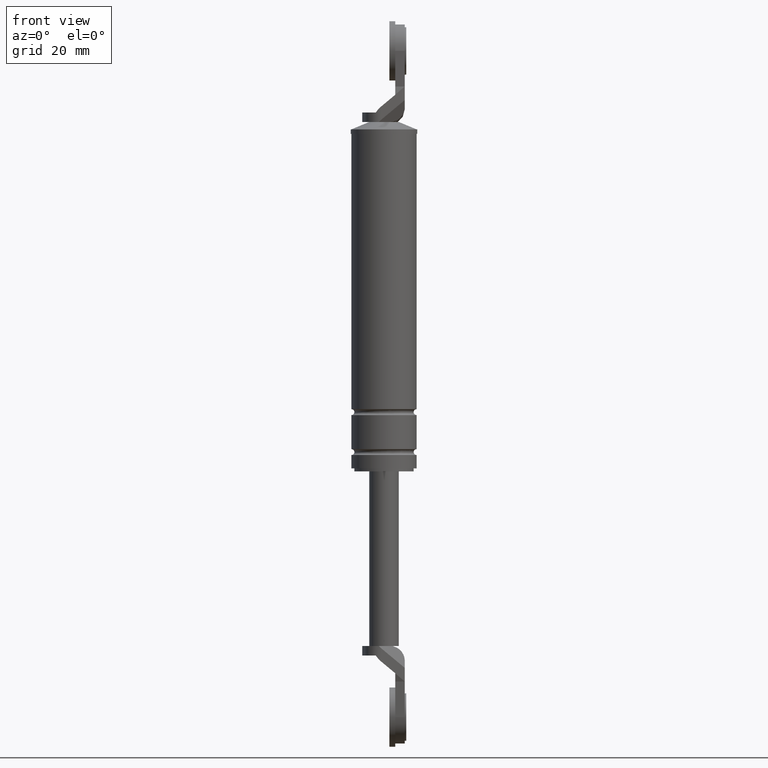
[diagram: clean part render]
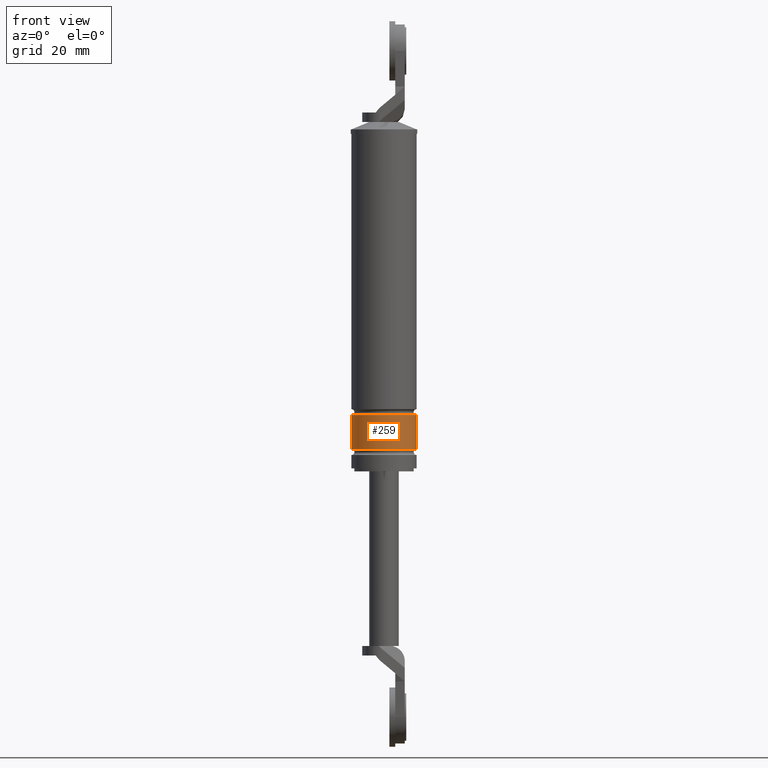
[diagram: same view with one face highlighted and labeled with its STEP entity id]
A machine part, front view. The second image highlights one B-rep face of the part: STEP entity #259.
In plain terms, the highlighted cylindrical surface (edge-blend (fillet) strip) has radius 11 mm, axis along (0, 0, 1).
Its self-contained STEP definition (entity closure, byte-faithful):
#259=ADVANCED_FACE('',(#847),#846,.T.);
#846=CYLINDRICAL_SURFACE('',#1591,1.10000000000E+001);
#847=FACE_OUTER_BOUND('',#1592,.T.);
#1588=CARTESIAN_POINT('',(0.00000000000E+000,3.58204186421E-014,0.00000000000E+000));
#1589=DIRECTION('',(-0.00000000000E+000,-0.00000000000E+000,1.00000000000E+000));
#1590=DIRECTION('',(1.00000000000E+000,0.00000000000E+000,0.00000000000E+000));
#1591=AXIS2_PLACEMENT_3D('',#1588,#1589,#1590);
#1592=EDGE_LOOP('',(#2034,#2035,#2036,#2037));
#2034=ORIENTED_EDGE('',*,*,#2295,.F.);
#2035=ORIENTED_EDGE('',*,*,#2307,.T.);
#2036=ORIENTED_EDGE('',*,*,#2303,.T.);
#2037=ORIENTED_EDGE('',*,*,#2308,.F.);
#2295=EDGE_CURVE('',#3146,#3147,#3148,.T.);
#2303=EDGE_CURVE('',#3180,#3187,#3200,.T.);
#2307=EDGE_CURVE('',#3146,#3180,#3224,.T.);
#2308=EDGE_CURVE('',#3147,#3187,#3230,.T.);
#3146=VERTEX_POINT('',#4177);
#3147=VERTEX_POINT('',#4178);
#3148=CIRCLE('',#4182,1.10000000000E+001);
#3180=VERTEX_POINT('',#4203);
#3187=VERTEX_POINT('',#4209);
#3200=CIRCLE('',#4222,1.10000000000E+001);
#3224=(BOUNDED_CURVE() B_SPLINE_CURVE(1,(#4231,#4232),.UNSPECIFIED.,.F.,.F.) B_SPLINE_CURVE_WITH_KNOTS((2,2),(8.33333343261E-002,9.16666667006E-001),.UNSPECIFIED.) CURVE() GEOMETRIC_REPRESENTATION_ITEM() RATIONAL_B_SPLINE_CURVE((1.00000000000E+000,1.00000000000E+000)) REPRESENTATION_ITEM('') );
#3230=(BOUNDED_CURVE() B_SPLINE_CURVE(1,(#4233,#4234),.UNSPECIFIED.,.F.,.F.) B_SPLINE_CURVE_WITH_KNOTS((2,2),(8.33333333333E-002,9.16666666667E-001),.UNSPECIFIED.) CURVE() GEOMETRIC_REPRESENTATION_ITEM() RATIONAL_B_SPLINE_CURVE((7.50000000000E-001,7.50000000000E-001)) REPRESENTATION_ITEM('') );
#4177=CARTESIAN_POINT('',(1.10000000000E+001,3.61192557345E-014,-2.15000150000E+001));
#4178=CARTESIAN_POINT('',(-1.10000000000E+001,3.58204186421E-014,-2.15000150000E+001));
#4179=CARTESIAN_POINT('',(0.00000000000E+000,3.58204186421E-014,-2.15000150000E+001));
#4180=DIRECTION('',(-0.00000000000E+000,0.00000000000E+000,-1.00000000000E+000));
#4181=DIRECTION('',(-1.00000000000E+000,-1.22460635382E-016,0.00000000000E+000));
#4182=AXIS2_PLACEMENT_3D('',#4179,#4180,#4181);
#4203=CARTESIAN_POINT('',(1.10000000000E+001,3.61192557345E-014,-1.00000150000E+001));
#4209=CARTESIAN_POINT('',(-1.10000000000E+001,3.58204186421E-014,-1.00000150000E+001));
#4219=CARTESIAN_POINT('',(0.00000000000E+000,3.58204186421E-014,-1.00000150000E+001));
#4220=DIRECTION('',(-0.00000000000E+000,0.00000000000E+000,-1.00000000000E+000));
#4221=DIRECTION('',(-1.00000000000E+000,-1.22460635382E-016,0.00000000000E+000));
#4222=AXIS2_PLACEMENT_3D('',#4219,#4220,#4221);
#4231=CARTESIAN_POINT('',(1.10000000000E+001,3.58204186421E-014,-2.15000149863E+001));
#4232=CARTESIAN_POINT('',(1.10000000000E+001,3.58204186421E-014,-1.00000149953E+001));
#4233=CARTESIAN_POINT('',(-1.10000000000E+001,3.55271367880E-014,-2.15000150000E+001));
#4234=CARTESIAN_POINT('',(-1.10000000000E+001,3.55271367880E-014,-1.00000150000E+001));